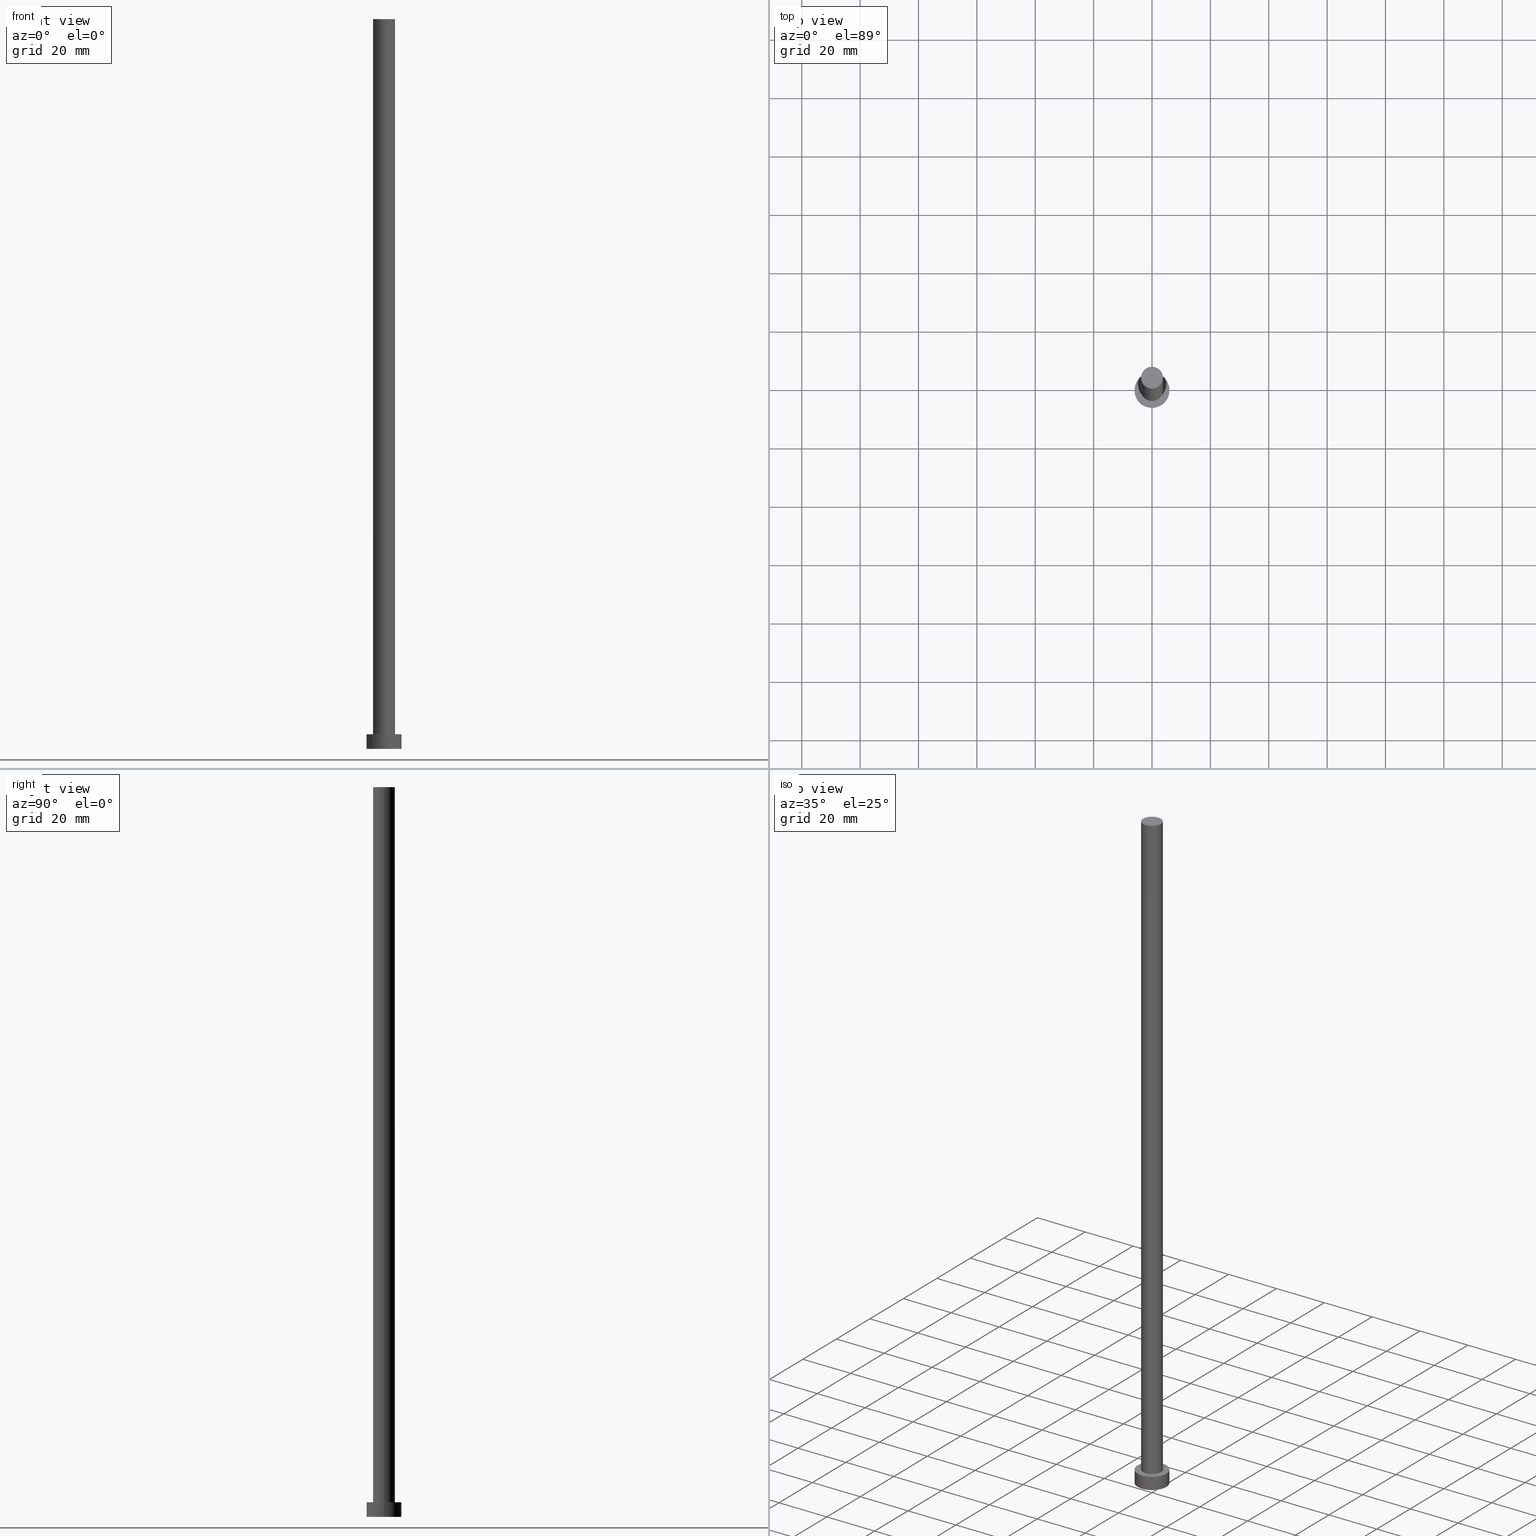
[diagram: canonical four-view strip — front | top / right | iso, engineering-drawing reading convention]
A machine part, canonical four-view strip (front | top / right | iso — engineering-drawing reading convention). The complete STEP part file that produces these views, byte-faithful:
ISO-10303-21;
HEADER;
FILE_DESCRIPTION (( 'STEP AP203' ),
    '1' );
FILE_NAME ('55f0.STEP',
    '2023-02-13T14:46:48',
    ( '' ),
    ( '' ),
    'SwSTEP 2.0',
    'SolidWorks 2019',
    '' );
FILE_SCHEMA (( 'CONFIG_CONTROL_DESIGN' ));
ENDSEC;

DATA;
#1 = CLOSED_SHELL ( 'NONE', ( #79, #62, #61, #216, #238, #29, #55 ) ) ;
#2 = CC_DESIGN_PERSON_AND_ORGANIZATION_ASSIGNMENT ( #17, #217, ( #83 ) ) ;
#3 = ORIENTED_EDGE ( 'NONE', *, *, #183, .F. ) ;
#4 = PERSON_AND_ORGANIZATION ( #243, #12 ) ;
#5 = ORIENTED_EDGE ( 'NONE', *, *, #44, .T. ) ;
#6 = AXIS2_PLACEMENT_3D ( 'NONE', #175, #195, #32 ) ;
#7 = APPROVAL_PERSON_ORGANIZATION ( #237, #218, #63 ) ;
#8 = CYLINDRICAL_SURFACE ( 'NONE', #146, 3.750000000000000000 ) ;
#9 = LINE ( 'NONE', #244, #126 ) ;
#10 = PLANE ( 'NONE',  #51 ) ;
#11 = DIRECTION ( 'NONE',  ( -1.000000000000000000, 0.000000000000000000, 0.000000000000000000 ) ) ;
#12 = ORGANIZATION ( 'NEUR�EN�', 'NEUR�EN�', '' ) ;
#13 = FACE_OUTER_BOUND ( 'NONE', #52, .T. ) ;
#14 = DIRECTION ( 'NONE',  ( -0.000000000000000000, -0.000000000000000000, -1.000000000000000000 ) ) ;
#15 = CYLINDRICAL_SURFACE ( 'NONE', #184, 3.750000000000000000 ) ;
#16 = COORDINATED_UNIVERSAL_TIME_OFFSET ( 1, 0, .AHEAD. ) ;
#17 = PERSON_AND_ORGANIZATION ( #243, #12 ) ;
#18 = AXIS2_PLACEMENT_3D ( 'NONE', #114, #209, #171 ) ;
#19 =( LENGTH_UNIT ( ) NAMED_UNIT ( * ) SI_UNIT ( .MILLI., .METRE. ) );
#20 = EDGE_CURVE ( 'NONE', #110, #239, #230, .T. ) ;
#21 = EDGE_LOOP ( 'NONE', ( #70, #129 ) ) ;
#22 = AXIS2_PLACEMENT_3D ( 'NONE', #158, #38, #98 ) ;
#23 = APPROVAL ( #102, 'NEUR�EN�' ) ;
#24 = EDGE_LOOP ( 'NONE', ( #241, #185, #48, #88 ) ) ;
#25 = ORIENTED_EDGE ( 'NONE', *, *, #107, .T. ) ;
#26 = APPROVAL_DATE_TIME ( #210, #23 ) ;
#27 = AXIS2_PLACEMENT_3D ( 'NONE', #247, #59, #11 ) ;
#28 = EDGE_LOOP ( 'NONE', ( #128, #3 ) ) ;
#29 = ADVANCED_FACE ( 'NONE', ( #91 ), #8, .T. ) ;
#30 = COORDINATED_UNIVERSAL_TIME_OFFSET ( 1, 0, .AHEAD. ) ;
#31 = DIRECTION ( 'NONE',  ( -1.000000000000000000, 0.000000000000000000, 0.000000000000000000 ) ) ;
#32 = DIRECTION ( 'NONE',  ( 1.000000000000000000, 0.000000000000000000, 0.000000000000000000 ) ) ;
#33 = CARTESIAN_POINT ( 'NONE',  ( -3.750000000000000000, 0.000000000000000000, 5.000000000000000000 ) ) ;
#34 = APPLICATION_CONTEXT ( 'configuration controlled 3d designs of mechanical parts and assemblies' ) ;
#35 = AXIS2_PLACEMENT_3D ( 'NONE', #152, #133, #231 ) ;
#36 = LOCAL_TIME ( 15, 46, 48.00000000000000000, #30 ) ;
#37 = CYLINDRICAL_SURFACE ( 'NONE', #27, 6.000000000000000888 ) ;
#38 = DIRECTION ( 'NONE',  ( 0.000000000000000000, 0.000000000000000000, 1.000000000000000000 ) ) ;
#39 = PERSON_AND_ORGANIZATION_ROLE ( 'creator' ) ;
#40 = AXIS2_PLACEMENT_3D ( 'NONE', #156, #232, #212 ) ;
#41 = CARTESIAN_POINT ( 'NONE',  ( 0.000000000000000000, 0.000000000000000000, 250.0000000000000000 ) ) ;
#42 = APPROVAL_DATE_TIME ( #219, #218 ) ;
#43 = CC_DESIGN_DATE_AND_TIME_ASSIGNMENT ( #66, #144, ( #254 ) ) ;
#44 = EDGE_CURVE ( 'NONE', #187, #110, #9, .T. ) ;
#45 = DATE_AND_TIME ( #160, #176 ) ;
#46 = LOCAL_TIME ( 15, 46, 48.00000000000000000, #60 ) ;
#47 = VERTEX_POINT ( 'NONE', #93 ) ;
#48 = ORIENTED_EDGE ( 'NONE', *, *, #183, .T. ) ;
#49 = EDGE_CURVE ( 'NONE', #87, #145, #134, .T. ) ;
#50 = DIRECTION ( 'NONE',  ( -0.000000000000000000, -0.000000000000000000, -1.000000000000000000 ) ) ;
#51 = AXIS2_PLACEMENT_3D ( 'NONE', #229, #249, #96 ) ;
#52 = EDGE_LOOP ( 'NONE', ( #143, #242, #168, #109 ) ) ;
#53 = SHAPE_DEFINITION_REPRESENTATION ( #235, #90 ) ;
#54 = CARTESIAN_POINT ( 'NONE',  ( 0.000000000000000000, 0.000000000000000000, 250.0000000000000000 ) ) ;
#55 = ADVANCED_FACE ( 'NONE', ( #76 ), #153, .T. ) ;
#56 = PLANE ( 'NONE',  #40 ) ;
#57 = CARTESIAN_POINT ( 'NONE',  ( 0.000000000000000000, 0.000000000000000000, 0.000000000000000000 ) ) ;
#58 = AXIS2_PLACEMENT_3D ( 'NONE', #54, #118, #196 ) ;
#59 = DIRECTION ( 'NONE',  ( -0.000000000000000000, -0.000000000000000000, -1.000000000000000000 ) ) ;
#60 = COORDINATED_UNIVERSAL_TIME_OFFSET ( 1, 0, .AHEAD. ) ;
#61 = ADVANCED_FACE ( 'NONE', ( #13 ), #215, .T. ) ;
#62 = ADVANCED_FACE ( 'NONE', ( #194 ), #37, .T. ) ;
#63 = APPROVAL_ROLE ( '' ) ;
#64 = APPROVAL ( #103, 'NEUR�EN�' ) ;
#65 = VERTEX_POINT ( 'NONE', #115 ) ;
#66 = DATE_AND_TIME ( #162, #147 ) ;
#67 = CARTESIAN_POINT ( 'NONE',  ( 0.000000000000000000, 0.000000000000000000, 5.000000000000000000 ) ) ;
#68 = AXIS2_PLACEMENT_3D ( 'NONE', #57, #173, #214 ) ;
#69 = CC_DESIGN_SECURITY_CLASSIFICATION ( #254, ( #105 ) ) ;
#70 = ORIENTED_EDGE ( 'NONE', *, *, #161, .F. ) ;
#71 = VERTEX_POINT ( 'NONE', #117 ) ;
#72 = DIRECTION ( 'NONE',  ( -0.000000000000000000, -0.000000000000000000, -1.000000000000000000 ) ) ;
#73 = CIRCLE ( 'NONE', #234, 3.750000000000000000 ) ;
#74 = CARTESIAN_POINT ( 'NONE',  ( 3.750000000000000000, 4.592425496802573972E-16, 5.000000000000000000 ) ) ;
#75 = EDGE_CURVE ( 'NONE', #47, #187, #97, .T. ) ;
#76 = FACE_OUTER_BOUND ( 'NONE', #221, .T. ) ;
#77 = DIRECTION ( 'NONE',  ( -0.000000000000000000, -0.000000000000000000, -1.000000000000000000 ) ) ;
#78 = FACE_OUTER_BOUND ( 'NONE', #21, .T. ) ;
#79 = ADVANCED_FACE ( 'NONE', ( #174 ), #15, .T. ) ;
#80 = CARTESIAN_POINT ( 'NONE',  ( -3.750000000000000000, 0.000000000000000000, 250.0000000000000000 ) ) ;
#81 = DATE_AND_TIME ( #124, #46 ) ;
#82 = COORDINATED_UNIVERSAL_TIME_OFFSET ( 1, 0, .AHEAD. ) ;
#83 = PRODUCT ( '55f0', '55f0', '', ( #222 ) ) ;
#84 = EDGE_CURVE ( 'NONE', #65, #145, #119, .T. ) ;
#85 = APPLICATION_PROTOCOL_DEFINITION ( 'international standard', 'config_control_design', 1994, #94 ) ;
#86 = PERSON_AND_ORGANIZATION_ROLE ( 'classification_officer' ) ;
#87 = VERTEX_POINT ( 'NONE', #177 ) ;
#88 = ORIENTED_EDGE ( 'NONE', *, *, #44, .F. ) ;
#89 = PERSON_AND_ORGANIZATION ( #243, #12 ) ;
#90 = ADVANCED_BREP_SHAPE_REPRESENTATION ( '55f0', ( #157, #223 ), #180 ) ;
#91 = FACE_OUTER_BOUND ( 'NONE', #108, .T. ) ;
#92 = CARTESIAN_POINT ( 'NONE',  ( 0.000000000000000000, 0.000000000000000000, 250.0000000000000000 ) ) ;
#93 = CARTESIAN_POINT ( 'NONE',  ( 3.750000000000000000, 4.592425496802573972E-16, 250.0000000000000000 ) ) ;
#94 = APPLICATION_CONTEXT ( 'configuration controlled 3d designs of mechanical parts and assemblies' ) ;
#95 = CC_DESIGN_DATE_AND_TIME_ASSIGNMENT ( #45, #204, ( #113 ) ) ;
#96 = DIRECTION ( 'NONE',  ( 1.000000000000000000, 0.000000000000000000, -0.000000000000000000 ) ) ;
#97 = CIRCLE ( 'NONE', #6, 3.750000000000000000 ) ;
#98 = DIRECTION ( 'NONE',  ( 1.000000000000000000, 0.000000000000000000, 0.000000000000000000 ) ) ;
#99 = CARTESIAN_POINT ( 'NONE',  ( 0.000000000000000000, 0.000000000000000000, 5.000000000000000000 ) ) ;
#100 = FACE_BOUND ( 'NONE', #28, .T. ) ;
#101 = LINE ( 'NONE', #211, #208 ) ;
#102 = APPROVAL_STATUS ( 'not_yet_approved' ) ;
#103 = APPROVAL_STATUS ( 'not_yet_approved' ) ;
#104 = AXIS2_PLACEMENT_3D ( 'NONE', #250, #246, #136 ) ;
#105 = PRODUCT_DEFINITION_FORMATION_WITH_SPECIFIED_SOURCE ( 'LIBOVOLN�', '', #83, .NOT_KNOWN. ) ;
#106 = PERSON_AND_ORGANIZATION_ROLE ( 'creator' ) ;
#107 = EDGE_CURVE ( 'NONE', #71, #65, #188, .T. ) ;
#108 = EDGE_LOOP ( 'NONE', ( #202, #170, #5, #207 ) ) ;
#109 = ORIENTED_EDGE ( 'NONE', *, *, #161, .T. ) ;
#110 = VERTEX_POINT ( 'NONE', #33 ) ;
#111 = DIRECTION ( 'NONE',  ( 0.000000000000000000, 0.000000000000000000, 1.000000000000000000 ) ) ;
#112 = EDGE_LOOP ( 'NONE', ( #148, #25 ) ) ;
#113 = PRODUCT_DEFINITION ( 'NEZN�M�', '', #105, #191 ) ;
#114 = CARTESIAN_POINT ( 'NONE',  ( 0.000000000000000000, 0.000000000000000000, 5.000000000000000000 ) ) ;
#115 = CARTESIAN_POINT ( 'NONE',  ( -6.000000000000000888, 0.000000000000000000, 5.000000000000000000 ) ) ;
#116 = APPROVAL_PERSON_ORGANIZATION ( #89, #64, #139 ) ;
#117 = CARTESIAN_POINT ( 'NONE',  ( 6.000000000000000888, 7.347880794884120722E-16, 5.000000000000000000 ) ) ;
#118 = DIRECTION ( 'NONE',  ( 0.000000000000000000, 0.000000000000000000, 1.000000000000000000 ) ) ;
#119 = LINE ( 'NONE', #228, #172 ) ;
#120 = DIRECTION ( 'NONE',  ( 1.000000000000000000, 0.000000000000000000, 0.000000000000000000 ) ) ;
#121 = CC_DESIGN_APPROVAL ( #218, ( #105 ) ) ;
#122 = APPLICATION_PROTOCOL_DEFINITION ( 'international standard', 'config_control_design', 1994, #34 ) ;
#123 = DIRECTION ( 'NONE',  ( 0.000000000000000000, 0.000000000000000000, 1.000000000000000000 ) ) ;
#124 = CALENDAR_DATE ( 2023, 13, 2 ) ;
#125 = CC_DESIGN_APPROVAL ( #23, ( #254 ) ) ;
#126 = VECTOR ( 'NONE', #72, 1000.000000000000000 ) ;
#127 = PERSON_AND_ORGANIZATION ( #243, #12 ) ;
#128 = ORIENTED_EDGE ( 'NONE', *, *, #20, .F. ) ;
#129 = ORIENTED_EDGE ( 'NONE', *, *, #49, .F. ) ;
#130 = CIRCLE ( 'NONE', #18, 6.000000000000000888 ) ;
#131 = CARTESIAN_POINT ( 'NONE',  ( 6.000000000000000888, 7.347880794884120722E-16, 5.000000000000000000 ) ) ;
#132 = CARTESIAN_POINT ( 'NONE',  ( -6.000000000000000888, 0.000000000000000000, 0.000000000000000000 ) ) ;
#133 = DIRECTION ( 'NONE',  ( 0.000000000000000000, 0.000000000000000000, 1.000000000000000000 ) ) ;
#134 = CIRCLE ( 'NONE', #35, 6.000000000000000888 ) ;
#135 = DIRECTION ( 'NONE',  ( -0.000000000000000000, -0.000000000000000000, -1.000000000000000000 ) ) ;
#136 = DIRECTION ( 'NONE',  ( 1.000000000000000000, 0.000000000000000000, 0.000000000000000000 ) ) ;
#137 = APPROVAL_DATE_TIME ( #81, #64 ) ;
#138 = CARTESIAN_POINT ( 'NONE',  ( 0.000000000000000000, 0.000000000000000000, 0.000000000000000000 ) ) ;
#139 = APPROVAL_ROLE ( '' ) ;
#140 = COORDINATED_UNIVERSAL_TIME_OFFSET ( 1, 0, .AHEAD. ) ;
#141 = CIRCLE ( 'NONE', #68, 6.000000000000000888 ) ;
#142 = CC_DESIGN_APPROVAL ( #64, ( #113 ) ) ;
#143 = ORIENTED_EDGE ( 'NONE', *, *, #198, .F. ) ;
#144 = DATE_TIME_ROLE ( 'classification_date' ) ;
#145 = VERTEX_POINT ( 'NONE', #132 ) ;
#146 = AXIS2_PLACEMENT_3D ( 'NONE', #92, #50, #189 ) ;
#147 = LOCAL_TIME ( 15, 46, 48.00000000000000000, #16 ) ;
#148 = ORIENTED_EDGE ( 'NONE', *, *, #205, .T. ) ;
#149 = ORIENTED_EDGE ( 'NONE', *, *, #75, .T. ) ;
#150 = UNCERTAINTY_MEASURE_WITH_UNIT (LENGTH_MEASURE( 1.000000000000000082E-05 ), #19, 'distance_accuracy_value', 'NONE');
#151 = EDGE_CURVE ( 'NONE', #47, #239, #101, .T. ) ;
#152 = CARTESIAN_POINT ( 'NONE',  ( 0.000000000000000000, 0.000000000000000000, 0.000000000000000000 ) ) ;
#153 = PLANE ( 'NONE',  #58 ) ;
#154 = CARTESIAN_POINT ( 'NONE',  ( 0.000000000000000000, 0.000000000000000000, 250.0000000000000000 ) ) ;
#155 = DIRECTION ( 'NONE',  ( -0.000000000000000000, -0.000000000000000000, -1.000000000000000000 ) ) ;
#156 = CARTESIAN_POINT ( 'NONE',  ( 0.000000000000000000, 0.000000000000000000, 0.000000000000000000 ) ) ;
#157 = MANIFOLD_SOLID_BREP ( 'P�idat vysunut�m3', #1 ) ;
#158 = CARTESIAN_POINT ( 'NONE',  ( 0.000000000000000000, 0.000000000000000000, 5.000000000000000000 ) ) ;
#159 = PERSON_AND_ORGANIZATION ( #243, #12 ) ;
#160 = CALENDAR_DATE ( 2023, 13, 2 ) ;
#161 = EDGE_CURVE ( 'NONE', #145, #87, #141, .T. ) ;
#162 = CALENDAR_DATE ( 2023, 13, 2 ) ;
#163 = ORIENTED_EDGE ( 'NONE', *, *, #198, .T. ) ;
#164 = ORIENTED_EDGE ( 'NONE', *, *, #49, .T. ) ;
#165 =( NAMED_UNIT ( * ) PLANE_ANGLE_UNIT ( ) SI_UNIT ( $, .RADIAN. ) );
#166 = ORIENTED_EDGE ( 'NONE', *, *, #252, .T. ) ;
#167 = AXIS2_PLACEMENT_3D ( 'NONE', #67, #111, #226 ) ;
#168 = ORIENTED_EDGE ( 'NONE', *, *, #84, .T. ) ;
#169 = CC_DESIGN_PERSON_AND_ORGANIZATION_ASSIGNMENT ( #186, #106, ( #105 ) ) ;
#170 = ORIENTED_EDGE ( 'NONE', *, *, #252, .F. ) ;
#171 = DIRECTION ( 'NONE',  ( 1.000000000000000000, 0.000000000000000000, 0.000000000000000000 ) ) ;
#172 = VECTOR ( 'NONE', #192, 1000.000000000000000 ) ;
#173 = DIRECTION ( 'NONE',  ( 0.000000000000000000, 0.000000000000000000, 1.000000000000000000 ) ) ;
#174 = FACE_OUTER_BOUND ( 'NONE', #24, .T. ) ;
#175 = CARTESIAN_POINT ( 'NONE',  ( 0.000000000000000000, 0.000000000000000000, 250.0000000000000000 ) ) ;
#176 = LOCAL_TIME ( 15, 46, 48.00000000000000000, #82 ) ;
#177 = CARTESIAN_POINT ( 'NONE',  ( 6.000000000000000888, 7.347880794884120722E-16, 0.000000000000000000 ) ) ;
#178 = APPROVAL_ROLE ( '' ) ;
#179 = APPROVAL_STATUS ( 'not_yet_approved' ) ;
#180 =( GEOMETRIC_REPRESENTATION_CONTEXT ( 3 ) GLOBAL_UNCERTAINTY_ASSIGNED_CONTEXT ( ( #150 ) ) GLOBAL_UNIT_ASSIGNED_CONTEXT ( ( #19, #165, #236 ) ) REPRESENTATION_CONTEXT ( 'NONE', 'WORKASPACE' ) );
#181 = CC_DESIGN_PERSON_AND_ORGANIZATION_ASSIGNMENT ( #197, #182, ( #105 ) ) ;
#182 = PERSON_AND_ORGANIZATION_ROLE ( 'design_supplier' ) ;
#183 = EDGE_CURVE ( 'NONE', #239, #110, #213, .T. ) ;
#184 = AXIS2_PLACEMENT_3D ( 'NONE', #154, #155, #245 ) ;
#185 = ORIENTED_EDGE ( 'NONE', *, *, #151, .T. ) ;
#186 = PERSON_AND_ORGANIZATION ( #243, #12 ) ;
#187 = VERTEX_POINT ( 'NONE', #80 ) ;
#188 = CIRCLE ( 'NONE', #22, 6.000000000000000888 ) ;
#189 = DIRECTION ( 'NONE',  ( -1.000000000000000000, 0.000000000000000000, 0.000000000000000000 ) ) ;
#190 = FACE_OUTER_BOUND ( 'NONE', #112, .T. ) ;
#191 = DESIGN_CONTEXT ( 'detailed design', #94, 'design' ) ;
#192 = DIRECTION ( 'NONE',  ( -0.000000000000000000, -0.000000000000000000, -1.000000000000000000 ) ) ;
#193 = AXIS2_PLACEMENT_3D ( 'NONE', #99, #135, #31 ) ;
#194 = FACE_OUTER_BOUND ( 'NONE', #227, .T. ) ;
#195 = DIRECTION ( 'NONE',  ( 0.000000000000000000, 0.000000000000000000, 1.000000000000000000 ) ) ;
#196 = DIRECTION ( 'NONE',  ( 1.000000000000000000, 0.000000000000000000, -0.000000000000000000 ) ) ;
#197 = PERSON_AND_ORGANIZATION ( #243, #12 ) ;
#198 = EDGE_CURVE ( 'NONE', #71, #87, #233, .T. ) ;
#199 = LOCAL_TIME ( 15, 46, 48.00000000000000000, #140 ) ;
#200 = DIRECTION ( 'NONE',  ( 1.000000000000000000, 0.000000000000000000, 0.000000000000000000 ) ) ;
#201 = CC_DESIGN_PERSON_AND_ORGANIZATION_ASSIGNMENT ( #127, #39, ( #113 ) ) ;
#202 = ORIENTED_EDGE ( 'NONE', *, *, #151, .F. ) ;
#203 = VECTOR ( 'NONE', #14, 1000.000000000000000 ) ;
#204 = DATE_TIME_ROLE ( 'creation_date' ) ;
#205 = EDGE_CURVE ( 'NONE', #65, #71, #130, .T. ) ;
#206 = CALENDAR_DATE ( 2023, 13, 2 ) ;
#207 = ORIENTED_EDGE ( 'NONE', *, *, #20, .T. ) ;
#208 = VECTOR ( 'NONE', #77, 1000.000000000000000 ) ;
#209 = DIRECTION ( 'NONE',  ( 0.000000000000000000, 0.000000000000000000, 1.000000000000000000 ) ) ;
#210 = DATE_AND_TIME ( #206, #36 ) ;
#211 = CARTESIAN_POINT ( 'NONE',  ( 3.750000000000000000, 4.592425496802573972E-16, 250.0000000000000000 ) ) ;
#212 = DIRECTION ( 'NONE',  ( 1.000000000000000000, 0.000000000000000000, -0.000000000000000000 ) ) ;
#213 = CIRCLE ( 'NONE', #104, 3.750000000000000000 ) ;
#214 = DIRECTION ( 'NONE',  ( 1.000000000000000000, 0.000000000000000000, 0.000000000000000000 ) ) ;
#215 = CYLINDRICAL_SURFACE ( 'NONE', #193, 6.000000000000000888 ) ;
#216 = ADVANCED_FACE ( 'NONE', ( #100, #190 ), #10, .T. ) ;
#217 = PERSON_AND_ORGANIZATION_ROLE ( 'design_owner' ) ;
#218 = APPROVAL ( #179, 'NEUR�EN�' ) ;
#219 = DATE_AND_TIME ( #253, #199 ) ;
#220 = APPROVAL_PERSON_ORGANIZATION ( #4, #23, #178 ) ;
#221 = EDGE_LOOP ( 'NONE', ( #166, #149 ) ) ;
#222 = MECHANICAL_CONTEXT ( 'NONE', #34, 'mechanical' ) ;
#223 = AXIS2_PLACEMENT_3D ( 'NONE', #138, #123, #120 ) ;
#224 = CC_DESIGN_PERSON_AND_ORGANIZATION_ASSIGNMENT ( #159, #86, ( #254 ) ) ;
#225 = ORIENTED_EDGE ( 'NONE', *, *, #84, .F. ) ;
#226 = DIRECTION ( 'NONE',  ( 1.000000000000000000, 0.000000000000000000, 0.000000000000000000 ) ) ;
#227 = EDGE_LOOP ( 'NONE', ( #240, #163, #164, #225 ) ) ;
#228 = CARTESIAN_POINT ( 'NONE',  ( -6.000000000000000888, 0.000000000000000000, 5.000000000000000000 ) ) ;
#229 = CARTESIAN_POINT ( 'NONE',  ( 0.000000000000000000, 0.000000000000000000, 5.000000000000000000 ) ) ;
#230 = CIRCLE ( 'NONE', #167, 3.750000000000000000 ) ;
#231 = DIRECTION ( 'NONE',  ( 1.000000000000000000, 0.000000000000000000, 0.000000000000000000 ) ) ;
#232 = DIRECTION ( 'NONE',  ( 0.000000000000000000, 0.000000000000000000, 1.000000000000000000 ) ) ;
#233 = LINE ( 'NONE', #131, #203 ) ;
#234 = AXIS2_PLACEMENT_3D ( 'NONE', #41, #251, #200 ) ;
#235 = PRODUCT_DEFINITION_SHAPE ( 'NONE', 'NONE',  #113 ) ;
#236 =( NAMED_UNIT ( * ) SI_UNIT ( $, .STERADIAN. ) SOLID_ANGLE_UNIT ( ) );
#237 = PERSON_AND_ORGANIZATION ( #243, #12 ) ;
#238 = ADVANCED_FACE ( 'NONE', ( #78 ), #56, .F. ) ;
#239 = VERTEX_POINT ( 'NONE', #74 ) ;
#240 = ORIENTED_EDGE ( 'NONE', *, *, #107, .F. ) ;
#241 = ORIENTED_EDGE ( 'NONE', *, *, #75, .F. ) ;
#242 = ORIENTED_EDGE ( 'NONE', *, *, #205, .F. ) ;
#243 = PERSON ( 'NEUR�EN�', 'NEUR�EN�', 'NEUR�EN�', ('NEUR�EN�'), ('NEUR�EN�'), ('NEUR�EN�') ) ;
#244 = CARTESIAN_POINT ( 'NONE',  ( -3.750000000000000000, 0.000000000000000000, 250.0000000000000000 ) ) ;
#245 = DIRECTION ( 'NONE',  ( -1.000000000000000000, 0.000000000000000000, 0.000000000000000000 ) ) ;
#246 = DIRECTION ( 'NONE',  ( 0.000000000000000000, 0.000000000000000000, 1.000000000000000000 ) ) ;
#247 = CARTESIAN_POINT ( 'NONE',  ( 0.000000000000000000, 0.000000000000000000, 5.000000000000000000 ) ) ;
#248 = PRODUCT_RELATED_PRODUCT_CATEGORY ( 'detail', '', ( #83 ) ) ;
#249 = DIRECTION ( 'NONE',  ( 0.000000000000000000, 0.000000000000000000, 1.000000000000000000 ) ) ;
#250 = CARTESIAN_POINT ( 'NONE',  ( 0.000000000000000000, 0.000000000000000000, 5.000000000000000000 ) ) ;
#251 = DIRECTION ( 'NONE',  ( 0.000000000000000000, 0.000000000000000000, 1.000000000000000000 ) ) ;
#252 = EDGE_CURVE ( 'NONE', #187, #47, #73, .T. ) ;
#253 = CALENDAR_DATE ( 2023, 13, 2 ) ;
#254 = SECURITY_CLASSIFICATION ( '', '', #255 ) ;
#255 = SECURITY_CLASSIFICATION_LEVEL ( 'unclassified' ) ;
ENDSEC;
END-ISO-10303-21;
